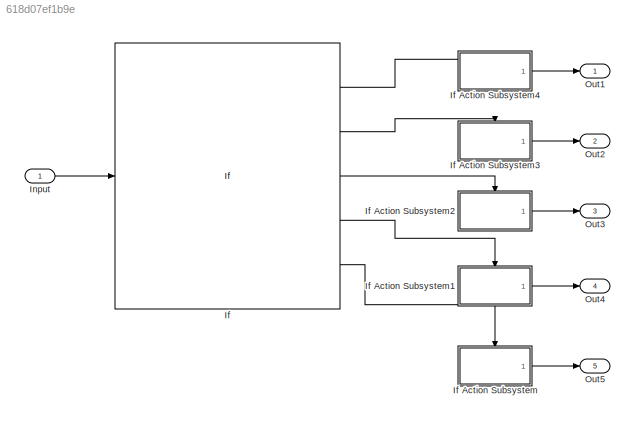
MODEL slx_618d07ef1b9e
KIND model
CONFIG AbsTol = auto
CONFIG EnableMultiTasking = off
CONFIG FixedStep = auto
CONFIG MaxStep = auto
CONFIG MinStep = auto
CONFIG RelTol = 1e-3
CONFIG SampleTimeConstraint = Unconstrained
CONFIG Solver = VariableStepAuto
CONFIG SolverName = VariableStepAuto
CONFIG StartTime = 0.0
CONFIG StopTime = 10
BLOCK [If] If
  ElseIfExpressions = (85> u1 ) & (u1 >= 75), 75 > u1 & u1 >= 65, 65 >  u1 & u1  >= 50, 50 >  u1 & u1  >= 0
  IfExpression = 100 > u1 & u1 >= 85
  Ports = [1, 5]
  ShowElse = off
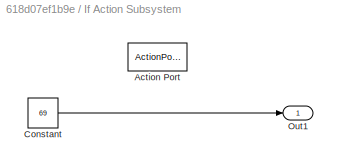
BLOCK [SubSystem] If Action Subsystem
  Ports = [0, 1, 0, 0, 0, 0, 0, 1]
  RequestExecContextInheritance = off
  TreatAsAtomicUnit = on
BLOCK [ActionPort] If Action Subsystem/Action Port
  ActionType = elseif
BLOCK [Constant] If Action Subsystem/Constant
  Value = 69
BLOCK [Outport] If Action Subsystem/Out1
  IconDisplay = Port number
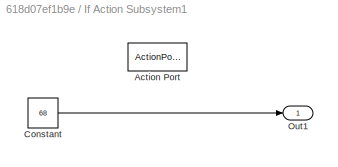
BLOCK [SubSystem] If Action Subsystem1
  Ports = [0, 1, 0, 0, 0, 0, 0, 1]
  RequestExecContextInheritance = off
  TreatAsAtomicUnit = on
BLOCK [ActionPort] If Action Subsystem1/Action Port
  ActionType = elseif
BLOCK [Constant] If Action Subsystem1/Constant
  Value = 68
BLOCK [Outport] If Action Subsystem1/Out1
  IconDisplay = Port number
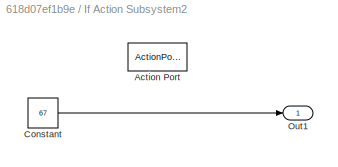
BLOCK [SubSystem] If Action Subsystem2
  Ports = [0, 1, 0, 0, 0, 0, 0, 1]
  RequestExecContextInheritance = off
  TreatAsAtomicUnit = on
BLOCK [ActionPort] If Action Subsystem2/Action Port
  ActionType = elseif
BLOCK [Constant] If Action Subsystem2/Constant
  Value = 67
BLOCK [Outport] If Action Subsystem2/Out1
  IconDisplay = Port number
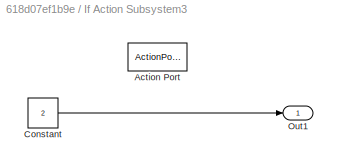
BLOCK [SubSystem] If Action Subsystem3
  Ports = [0, 1, 0, 0, 0, 0, 0, 1]
  RequestExecContextInheritance = off
  TreatAsAtomicUnit = on
BLOCK [ActionPort] If Action Subsystem3/Action Port
  ActionType = elseif
BLOCK [Constant] If Action Subsystem3/Constant
  Value = 2
BLOCK [Outport] If Action Subsystem3/Out1
  IconDisplay = Port number
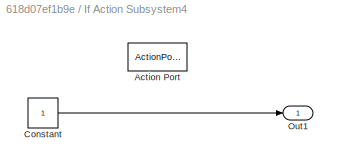
BLOCK [SubSystem] If Action Subsystem4
  Ports = [0, 1, 0, 0, 0, 0, 0, 1]
  RequestExecContextInheritance = off
  TreatAsAtomicUnit = on
BLOCK [ActionPort] If Action Subsystem4/Action Port
  ActionType = then
BLOCK [Constant] If Action Subsystem4/Constant
BLOCK [Outport] If Action Subsystem4/Out1
  IconDisplay = Port number
BLOCK [Inport] Input
  IconDisplay = Port number
BLOCK [Outport] Out1
  IconDisplay = Port number
BLOCK [Outport] Out2
  IconDisplay = Port number
  Port = 2
BLOCK [Outport] Out3
  IconDisplay = Port number
  Port = 3
BLOCK [Outport] Out4
  IconDisplay = Port number
  Port = 4
BLOCK [Outport] Out5
  IconDisplay = Port number
  Port = 5
LINE If Action Subsystem/Constant:1 -> If Action Subsystem/Out1:1
LINE If Action Subsystem1/Constant:1 -> If Action Subsystem1/Out1:1
LINE If Action Subsystem1:1 -> Out4:1
LINE If Action Subsystem2/Constant:1 -> If Action Subsystem2/Out1:1
LINE If Action Subsystem2:1 -> Out3:1
LINE If Action Subsystem3/Constant:1 -> If Action Subsystem3/Out1:1
LINE If Action Subsystem3:1 -> Out2:1
LINE If Action Subsystem4/Constant:1 -> If Action Subsystem4/Out1:1
LINE If Action Subsystem4:1 -> Out1:1
LINE If Action Subsystem:1 -> Out5:1
LINE If:1 -> If Action Subsystem4:ifaction
LINE If:2 -> If Action Subsystem3:ifaction
LINE If:3 -> If Action Subsystem2:ifaction
LINE If:4 -> If Action Subsystem1:ifaction
LINE If:5 -> If Action Subsystem:ifaction
LINE Input:1 -> If:1
